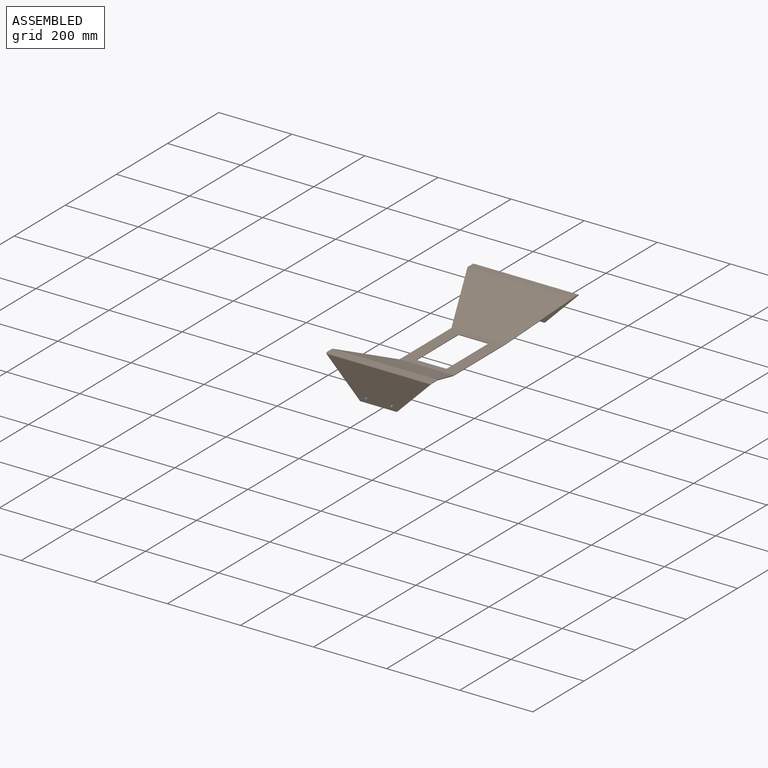
[diagram: assembled view]
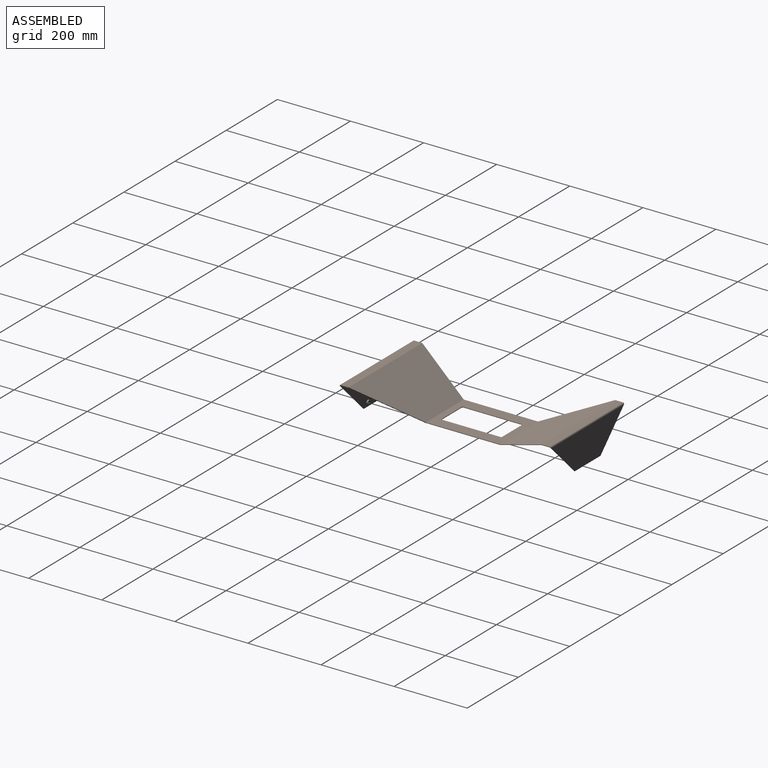
[diagram: assembled view, second angle]
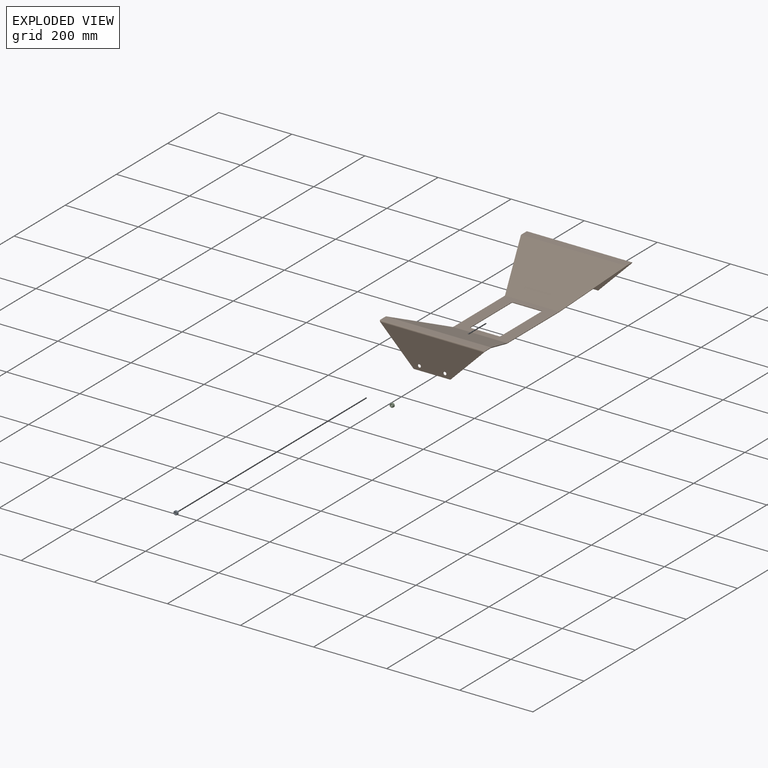
[diagram: exploded view]
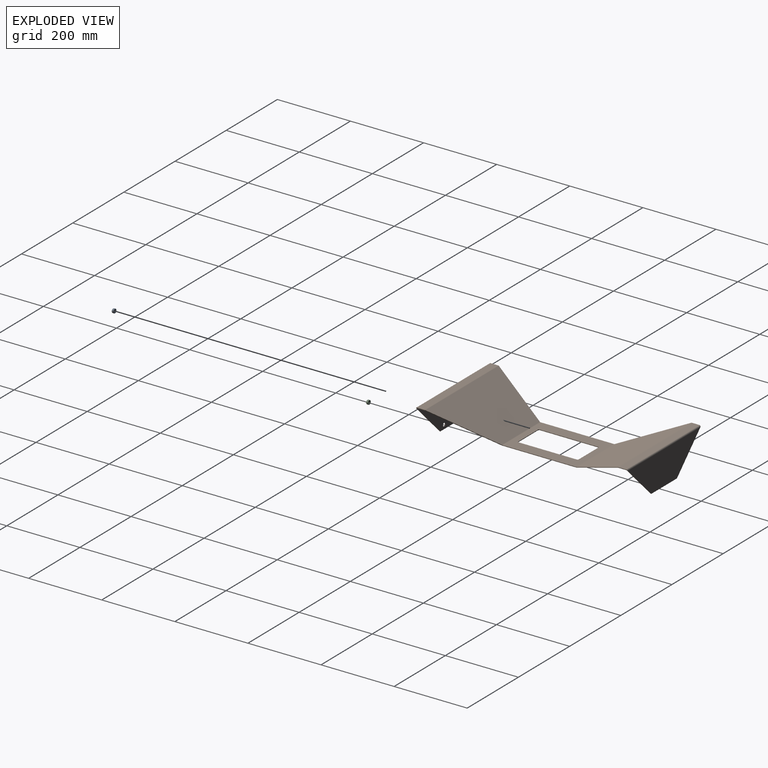
[diagram: exploded view, second angle]
ASSEMBLY  parts=3 mates=2
PART A: 158 faces, bbox 11.2x6.8x11.2 mm
  f0: cone r=3.23mm half-angle=45deg, axis (0,1,0), area 11.9mm2, adj f6,f7,f8,f9,f157
  f1: cone r=3.23mm half-angle=45deg, axis (0,-1,0), area 12mm2, adj f6,f7,f8,f9,f155
  f2: cone r=5.59mm half-angle=45deg, axis (0,-1,0), area 6.2mm2, adj f5,f154
  f3: cone r=5.46mm half-angle=45deg, axis (0,1,0), area 6.2mm2, adj f5,f155
  f4: cone r=4.32mm half-angle=20deg, axis (0,1,0), area 10.1mm2, adj f156,f157
  f5: cylinder r=5.59mm len=11.18mm, axis (0,-1,0), area 142.7mm2, adj f2,f3
  f6: cylinder r=3.17mm len=6.35mm, axis (0,-1,0), area 14.1mm2, adj f0,f1,f8,f9
  f7: cylinder r=2.35mm len=4.7mm, axis (0,-1,0), area 7.4mm2, adj f0,f1,f8,f9
  f8: bspline ~7.33x6.35mm, area 63.3mm2, adj f0,f1,f6,f7
  f9: bspline ~7.33x6.4mm, area 63.3mm2, adj f0,f1,f6,f7
  f10: cylinder r=4.69mm len=1.07mm, axis (0,-1,0), area 0.7mm2, adj f148,f152,f154,f156
  f11: cylinder r=4.69mm len=1.07mm, axis (0,-1,0), area 0.7mm2, adj f145,f149,f154,f156
  f12: cylinder r=4.69mm len=1.07mm, axis (0,-1,0), area 0.7mm2, adj f142,f146,f154,f156
  f13: cylinder r=4.69mm len=1.07mm, axis (0,-1,0), area 0.7mm2, adj f139,f143,f154,f156
  f14: cylinder r=4.69mm len=1.07mm, axis (0,-1,0), area 0.7mm2, adj f136,f140,f154,f156
  f15: cylinder r=4.69mm len=1.07mm, axis (0,-1,0), area 0.7mm2, adj f133,f137,f154,f156
  f16: cylinder r=4.69mm len=1.07mm, axis (0,-1,0), area 0.7mm2, adj f130,f134,f154,f156
  f17: cylinder r=4.69mm len=1.07mm, axis (0,-1,0), area 0.7mm2, adj f127,f131,f154,f156
  f18: cylinder r=4.69mm len=1.07mm, axis (0,-1,0), area 0.7mm2, adj f124,f128,f154,f156
  f19: cylinder r=4.69mm len=1.07mm, axis (0,-1,0), area 0.7mm2, adj f121,f125,f154,f156
  f20: cylinder r=4.69mm len=1.07mm, axis (0,-1,0), area 0.7mm2, adj f118,f122,f154,f156
  f21: cylinder r=4.69mm len=1.07mm, axis (0,-1,0), area 0.7mm2, adj f115,f119,f154,f156
  f22: cylinder r=4.69mm len=1.07mm, axis (0,-1,0), area 0.7mm2, adj f112,f116,f154,f156
  f23: cylinder r=4.69mm len=1.07mm, axis (0,-1,0), area 0.7mm2, adj f109,f113,f154,f156
  f24: cylinder r=4.69mm len=1.07mm, axis (0,-1,0), area 0.7mm2, adj f106,f110,f154,f156
  f25: cylinder r=4.69mm len=1.07mm, axis (0,-1,0), area 0.7mm2, adj f103,f107,f154,f156
  f26: cylinder r=4.69mm len=1.07mm, axis (0,-1,0), area 0.7mm2, adj f100,f104,f154,f156
  f27: cylinder r=4.69mm len=1.07mm, axis (0,-1,0), area 0.7mm2, adj f97,f101,f154,f156
  f28: cylinder r=4.69mm len=1.07mm, axis (0,-1,0), area 0.7mm2, adj f94,f98,f154,f156
  f29: cylinder r=4.69mm len=1.07mm, axis (0,-1,0), area 0.7mm2, adj f91,f95,f154,f156
  f30: cylinder r=4.69mm len=1.07mm, axis (0,-1,0), area 0.7mm2, adj f88,f92,f154,f156
  f31: cylinder r=4.69mm len=1.07mm, axis (0,-1,0), area 0.7mm2, adj f85,f89,f154,f156
  f32: cylinder r=4.69mm len=1.07mm, axis (0,-1,0), area 0.7mm2, adj f82,f86,f154,f156
  f33: cylinder r=4.69mm len=1.07mm, axis (0,-1,0), area 0.7mm2, adj f79,f83,f154,f156
  f34: cylinder r=4.69mm len=1.07mm, axis (0,-1,0), area 0.7mm2, adj f76,f80,f154,f156
  f35: cylinder r=4.69mm len=1.07mm, axis (0,-1,0), area 0.7mm2, adj f73,f77,f154,f156
  f36: cylinder r=4.69mm len=1.07mm, axis (0,-1,0), area 0.7mm2, adj f70,f74,f154,f156
  f37: cylinder r=4.69mm len=1.07mm, axis (0,-1,0), area 0.7mm2, adj f67,f71,f154,f156
  f38: cylinder r=4.69mm len=1.07mm, axis (0,-1,0), area 0.7mm2, adj f64,f68,f154,f156
  f39: cylinder r=4.69mm len=1.07mm, axis (0,-1,0), area 0.7mm2, adj f61,f65,f154,f156
  f40: cylinder r=4.69mm len=1.07mm, axis (0,-1,0), area 0.7mm2, adj f58,f62,f154,f156
  f41: cylinder r=4.69mm len=1.07mm, axis (0,-1,0), area 0.7mm2, adj f55,f59,f154,f156
  f42: cylinder r=4.69mm len=1.07mm, axis (0,-1,0), area 0.7mm2, adj f52,f56,f154,f156
  f43: cylinder r=4.69mm len=1.07mm, axis (0,-1,0), area 0.7mm2, adj f49,f53,f154,f156
  f44: cylinder r=4.69mm len=1.07mm, axis (0,-1,0), area 0.7mm2, adj f46,f50,f154,f156
  f45: cylinder r=4.69mm len=1.07mm, axis (0,-1,0), area 0.7mm2, adj f47,f151,f154,f156
  f46: plane 1.07x0.19mm, normal (1,0,0), area 0.2mm2, adj f44,f48,f154,f156
  f47: plane 1.07x0.19mm, normal (-1,0,0), area 0.2mm2, adj f45,f48,f154,f156
  f48: plane 1.07x0.13mm, normal (0,0,1), area 0.1mm2, adj f46,f47,f154,f156
  f49: plane 1.07x0.19mm, normal (0.98,0,0.17), area 0.2mm2, adj f43,f51,f154,f156
  f50: plane 1.07x0.19mm, normal (-0.98,0,-0.17), area 0.2mm2, adj f44,f51,f154,f156
  f51: plane 1.07x0.13mm, normal (-0.17,0,0.98), area 0.1mm2, adj f49,f50,f154,f156
  f52: plane 1.07x0.18mm, normal (0.94,0,0.34), area 0.2mm2, adj f42,f54,f154,f156
  f53: plane 1.07x0.18mm, normal (-0.94,0,-0.34), area 0.2mm2, adj f43,f54,f154,f156
  f54: plane 1.07x0.12mm, normal (-0.34,0,0.94), area 0.1mm2, adj f52,f53,f154,f156
  f55: plane 1.07x0.16mm, normal (0.87,0,0.5), area 0.2mm2, adj f41,f57,f154,f156
  f56: plane 1.07x0.16mm, normal (-0.87,0,-0.5), area 0.2mm2, adj f42,f57,f154,f156
  f57: plane 1.07x0.11mm, normal (-0.5,0,0.87), area 0.1mm2, adj f55,f56,f154,f156
  f58: plane 1.07x0.15mm, normal (0.77,0,0.64), area 0.2mm2, adj f40,f60,f154,f156
  f59: plane 1.07x0.15mm, normal (-0.77,0,-0.64), area 0.2mm2, adj f41,f60,f154,f156
  f60: plane 1.07x0.1mm, normal (-0.64,0,0.77), area 0.1mm2, adj f58,f59,f154,f156
  f61: plane 1.07x0.15mm, normal (0.64,0,0.77), area 0.2mm2, adj f39,f63,f154,f156
  f62: plane 1.07x0.15mm, normal (-0.64,0,-0.77), area 0.2mm2, adj f40,f63,f154,f156
  f63: plane 1.07x0.1mm, normal (-0.77,0,0.64), area 0.1mm2, adj f61,f62,f154,f156
  f64: plane 1.07x0.16mm, normal (0.5,0,0.87), area 0.2mm2, adj f38,f66,f154,f156
  f65: plane 1.07x0.16mm, normal (-0.5,0,-0.87), area 0.2mm2, adj f39,f66,f154,f156
  f66: plane 1.07x0.11mm, normal (-0.87,0,0.5), area 0.1mm2, adj f64,f65,f154,f156
  f67: plane 1.07x0.18mm, normal (0.34,0,0.94), area 0.2mm2, adj f37,f69,f154,f156
  f68: plane 1.07x0.18mm, normal (-0.34,0,-0.94), area 0.2mm2, adj f38,f69,f154,f156
  f69: plane 1.07x0.12mm, normal (-0.94,0,0.34), area 0.1mm2, adj f67,f68,f154,f156
  f70: plane 1.07x0.19mm, normal (0.17,0,0.98), area 0.2mm2, adj f36,f72,f154,f156
  f71: plane 1.07x0.19mm, normal (-0.17,0,-0.98), area 0.2mm2, adj f37,f72,f154,f156
  f72: plane 1.07x0.13mm, normal (-0.98,0,0.17), area 0.1mm2, adj f70,f71,f154,f156
  f73: plane 1.07x0.19mm, normal (0,0,1), area 0.2mm2, adj f35,f75,f154,f156
  f74: plane 1.07x0.19mm, normal (0,0,-1), area 0.2mm2, adj f36,f75,f154,f156
  f75: plane 1.07x0.13mm, normal (-1,0,0), area 0.1mm2, adj f73,f74,f154,f156
  f76: plane 1.07x0.19mm, normal (-0.17,0,0.98), area 0.2mm2, adj f34,f78,f154,f156
  f77: plane 1.07x0.19mm, normal (0.17,0,-0.98), area 0.2mm2, adj f35,f78,f154,f156
  f78: plane 1.07x0.13mm, normal (-0.98,0,-0.17), area 0.1mm2, adj f76,f77,f154,f156
  f79: plane 1.07x0.18mm, normal (-0.34,0,0.94), area 0.2mm2, adj f33,f81,f154,f156
  f80: plane 1.07x0.18mm, normal (0.34,0,-0.94), area 0.2mm2, adj f34,f81,f154,f156
  f81: plane 1.07x0.12mm, normal (-0.94,0,-0.34), area 0.1mm2, adj f79,f80,f154,f156
  f82: plane 1.07x0.16mm, normal (-0.5,0,0.87), area 0.2mm2, adj f32,f84,f154,f156
  f83: plane 1.07x0.16mm, normal (0.5,0,-0.87), area 0.2mm2, adj f33,f84,f154,f156
  f84: plane 1.07x0.11mm, normal (-0.87,0,-0.5), area 0.1mm2, adj f82,f83,f154,f156
  f85: plane 1.07x0.15mm, normal (-0.64,0,0.77), area 0.2mm2, adj f31,f87,f154,f156
  f86: plane 1.07x0.15mm, normal (0.64,0,-0.77), area 0.2mm2, adj f32,f87,f154,f156
  f87: plane 1.07x0.1mm, normal (-0.77,0,-0.64), area 0.1mm2, adj f85,f86,f154,f156
  f88: plane 1.07x0.15mm, normal (-0.77,0,0.64), area 0.2mm2, adj f30,f90,f154,f156
  f89: plane 1.07x0.15mm, normal (0.77,0,-0.64), area 0.2mm2, adj f31,f90,f154,f156
  f90: plane 1.07x0.1mm, normal (-0.64,0,-0.77), area 0.1mm2, adj f88,f89,f154,f156
  f91: plane 1.07x0.16mm, normal (-0.87,0,0.5), area 0.2mm2, adj f29,f93,f154,f156
  f92: plane 1.07x0.16mm, normal (0.87,0,-0.5), area 0.2mm2, adj f30,f93,f154,f156
  f93: plane 1.07x0.11mm, normal (-0.5,0,-0.87), area 0.1mm2, adj f91,f92,f154,f156
  f94: plane 1.07x0.18mm, normal (-0.94,0,0.34), area 0.2mm2, adj f28,f96,f154,f156
  f95: plane 1.07x0.18mm, normal (0.94,0,-0.34), area 0.2mm2, adj f29,f96,f154,f156
  f96: plane 1.07x0.12mm, normal (-0.34,0,-0.94), area 0.1mm2, adj f94,f95,f154,f156
  f97: plane 1.07x0.19mm, normal (-0.98,0,0.17), area 0.2mm2, adj f27,f99,f154,f156
  f98: plane 1.07x0.19mm, normal (0.98,0,-0.17), area 0.2mm2, adj f28,f99,f154,f156
  f99: plane 1.07x0.13mm, normal (-0.17,0,-0.98), area 0.1mm2, adj f97,f98,f154,f156
  f100: plane 1.07x0.19mm, normal (-1,0,0), area 0.2mm2, adj f26,f102,f154,f156
  f101: plane 1.07x0.19mm, normal (1,0,0), area 0.2mm2, adj f27,f102,f154,f156
  f102: plane 1.07x0.13mm, normal (0,0,-1), area 0.1mm2, adj f100,f101,f154,f156
  f103: plane 1.07x0.19mm, normal (-0.98,0,-0.17), area 0.2mm2, adj f25,f105,f154,f156
  f104: plane 1.07x0.19mm, normal (0.98,0,0.17), area 0.2mm2, adj f26,f105,f154,f156
  f105: plane 1.07x0.13mm, normal (0.17,0,-0.98), area 0.1mm2, adj f103,f104,f154,f156
  f106: plane 1.07x0.18mm, normal (-0.94,0,-0.34), area 0.2mm2, adj f24,f108,f154,f156
  f107: plane 1.07x0.18mm, normal (0.94,0,0.34), area 0.2mm2, adj f25,f108,f154,f156
  f108: plane 1.07x0.12mm, normal (0.34,0,-0.94), area 0.1mm2, adj f106,f107,f154,f156
  f109: plane 1.07x0.16mm, normal (-0.87,0,-0.5), area 0.2mm2, adj f23,f111,f154,f156
  f110: plane 1.07x0.16mm, normal (0.87,0,0.5), area 0.2mm2, adj f24,f111,f154,f156
  f111: plane 1.07x0.11mm, normal (0.5,0,-0.87), area 0.1mm2, adj f109,f110,f154,f156
  f112: plane 1.07x0.15mm, normal (-0.77,0,-0.64), area 0.2mm2, adj f22,f114,f154,f156
  f113: plane 1.07x0.15mm, normal (0.77,0,0.64), area 0.2mm2, adj f23,f114,f154,f156
  f114: plane 1.07x0.1mm, normal (0.64,0,-0.77), area 0.1mm2, adj f112,f113,f154,f156
  f115: plane 1.07x0.15mm, normal (-0.64,0,-0.77), area 0.2mm2, adj f21,f117,f154,f156
  f116: plane 1.07x0.15mm, normal (0.64,0,0.77), area 0.2mm2, adj f22,f117,f154,f156
  f117: plane 1.07x0.1mm, normal (0.77,0,-0.64), area 0.1mm2, adj f115,f116,f154,f156
  f118: plane 1.07x0.16mm, normal (-0.5,0,-0.87), area 0.2mm2, adj f20,f120,f154,f156
  f119: plane 1.07x0.16mm, normal (0.5,0,0.87), area 0.2mm2, adj f21,f120,f154,f156
  f120: plane 1.07x0.11mm, normal (0.87,0,-0.5), area 0.1mm2, adj f118,f119,f154,f156
  f121: plane 1.07x0.18mm, normal (-0.34,0,-0.94), area 0.2mm2, adj f19,f123,f154,f156
  f122: plane 1.07x0.18mm, normal (0.34,0,0.94), area 0.2mm2, adj f20,f123,f154,f156
  f123: plane 1.07x0.12mm, normal (0.94,0,-0.34), area 0.1mm2, adj f121,f122,f154,f156
  f124: plane 1.07x0.19mm, normal (-0.17,0,-0.98), area 0.2mm2, adj f18,f126,f154,f156
  f125: plane 1.07x0.19mm, normal (0.17,0,0.98), area 0.2mm2, adj f19,f126,f154,f156
  f126: plane 1.07x0.13mm, normal (0.98,0,-0.17), area 0.1mm2, adj f124,f125,f154,f156
  f127: plane 1.07x0.19mm, normal (0,0,-1), area 0.2mm2, adj f17,f129,f154,f156
  f128: plane 1.07x0.19mm, normal (0,0,1), area 0.2mm2, adj f18,f129,f154,f156
  f129: plane 1.07x0.13mm, normal (1,0,0), area 0.1mm2, adj f127,f128,f154,f156
  f130: plane 1.07x0.19mm, normal (0.17,0,-0.98), area 0.2mm2, adj f16,f132,f154,f156
  f131: plane 1.07x0.19mm, normal (-0.17,0,0.98), area 0.2mm2, adj f17,f132,f154,f156
  f132: plane 1.07x0.13mm, normal (0.98,0,0.17), area 0.1mm2, adj f130,f131,f154,f156
  f133: plane 1.07x0.18mm, normal (0.34,0,-0.94), area 0.2mm2, adj f15,f135,f154,f156
  f134: plane 1.07x0.18mm, normal (-0.34,0,0.94), area 0.2mm2, adj f16,f135,f154,f156
  f135: plane 1.07x0.12mm, normal (0.94,0,0.34), area 0.1mm2, adj f133,f134,f154,f156
  f136: plane 1.07x0.16mm, normal (0.5,0,-0.87), area 0.2mm2, adj f14,f138,f154,f156
  f137: plane 1.07x0.16mm, normal (-0.5,0,0.87), area 0.2mm2, adj f15,f138,f154,f156
  f138: plane 1.07x0.11mm, normal (0.87,0,0.5), area 0.1mm2, adj f136,f137,f154,f156
  f139: plane 1.07x0.15mm, normal (0.64,0,-0.77), area 0.2mm2, adj f13,f141,f154,f156
  f140: plane 1.07x0.15mm, normal (-0.64,0,0.77), area 0.2mm2, adj f14,f141,f154,f156
  f141: plane 1.07x0.1mm, normal (0.77,0,0.64), area 0.1mm2, adj f139,f140,f154,f156
  f142: plane 1.07x0.15mm, normal (0.77,0,-0.64), area 0.2mm2, adj f12,f144,f154,f156
  f143: plane 1.07x0.15mm, normal (-0.77,0,0.64), area 0.2mm2, adj f13,f144,f154,f156
  f144: plane 1.07x0.1mm, normal (0.64,0,0.77), area 0.1mm2, adj f142,f143,f154,f156
  f145: plane 1.07x0.16mm, normal (0.87,0,-0.5), area 0.2mm2, adj f11,f147,f154,f156
  f146: plane 1.07x0.16mm, normal (-0.87,0,0.5), area 0.2mm2, adj f12,f147,f154,f156
  f147: plane 1.07x0.11mm, normal (0.5,0,0.87), area 0.1mm2, adj f145,f146,f154,f156
  f148: plane 1.07x0.18mm, normal (0.94,0,-0.34), area 0.2mm2, adj f10,f150,f154,f156
  f149: plane 1.07x0.18mm, normal (-0.94,0,0.34), area 0.2mm2, adj f11,f150,f154,f156
  f150: plane 1.07x0.12mm, normal (0.34,0,0.94), area 0.1mm2, adj f148,f149,f154,f156
  f151: plane 1.07x0.19mm, normal (0.98,0,-0.17), area 0.2mm2, adj f45,f153,f154,f156
  f152: plane 1.07x0.19mm, normal (-0.98,0,0.17), area 0.2mm2, adj f10,f153,f154,f156
  f153: plane 1.07x0.13mm, normal (0.17,0,0.98), area 0.1mm2, adj f151,f152,f154,f156
  f154: plane 10.92x10.92mm, normal (0,1,0), area 25.6mm2, adj f2,f10,f11,f12,f13,f14,f15,f16
  f155: plane 10.92x10.92mm, normal (0,-1,0), area 61mm2, adj f1,f3
  f156: plane 9.37x9.37mm, normal (0,1,0), area 13mm2, adj f4,f10,f11,f12,f13,f14,f15,f16
  f157: plane 8.64x8.64mm, normal (0,1,0), area 25.9mm2, adj f0,f4
PART B: 64 faces, bbox 287.8x578.9x95.3 mm
  f0: plane 100.34x1.52mm, normal (0,0,-1), area 152.9mm2, adj f1,f2,f3,f4
  f1: plane 91.75x91.75mm, normal (-0.71,0,-0.71), area 197.7mm2, adj f0,f3,f4,f61
  f2: plane 91.75x91.75mm, normal (0.71,0,-0.71), area 197.7mm2, adj f0,f3,f4,f60
  f3: plane 283.83x91.75mm, normal (0,1,0), area 17622.6mm2, adj f0,f1,f2,f62
  f4: plane 283.83x91.75mm, normal (0,-1,0), area 17622.6mm2, adj f0,f1,f2,f63
  f5: plane 21.17x1.52mm, normal (-1,0,0), area 32.3mm2, adj f7,f8,f57,f61
  f6: plane 21.17x1.52mm, normal (1,0,0), area 32.3mm2, adj f7,f8,f56,f60
  f7: plane 287.79x21.17mm, normal (0,0,1), area 6093.4mm2, adj f5,f6,f58,f62
  f8: plane 287.79x21.17mm, normal (0,0,-1), area 6093.4mm2, adj f5,f6,f59,f63
  f9: plane 162x70.8mm, normal (-0.93,-0.34,-0.15), area 287.9mm2, adj f11,f12,f53,f57
  f10: plane 162x70.8mm, normal (0.93,-0.34,-0.15), area 287.9mm2, adj f11,f12,f52,f56
  f11: plane 287.47x161.4mm, normal (0,-0.4,0.92), area 38310.5mm2, adj f9,f10,f55,f58
  f12: plane 287.47x161.4mm, normal (0,0.4,-0.92), area 38310.5mm2, adj f9,f10,f54,f59
  f13: plane 202.38x1.52mm, normal (-1,0,0), area 308.4mm2, adj f23,f24,f49,f53
  f14: cylinder r=2.54mm len=2.54mm, axis (0,0,1), area 6.1mm2, adj f15,f21,f23,f24
  f15: plane 160.02x1.52mm, normal (1,0,0), area 243.9mm2, adj f14,f16,f23,f24
  f16: cylinder r=2.54mm len=2.54mm, axis (0,0,1), area 6.1mm2, adj f15,f17,f23,f24
  f17: plane 77.47x1.52mm, normal (0,-1,0), area 118.1mm2, adj f16,f18,f23,f24
  f18: cylinder r=2.54mm len=2.54mm, axis (0,0,1), area 6.1mm2, adj f17,f19,f23,f24
  f19: plane 160.02x1.52mm, normal (-1,0,0), area 243.9mm2, adj f18,f20,f23,f24
  f20: cylinder r=2.54mm len=2.54mm, axis (0,0,1), area 6.1mm2, adj f19,f21,f23,f24
  f21: plane 77.47x1.52mm, normal (0,1,0), area 118.1mm2, adj f14,f20,f23,f24
  f22: plane 202.38x1.52mm, normal (1,0,0), area 308.4mm2, adj f23,f24,f48,f52
  f23: plane 202.38x148.09mm, normal (0,0,1), area 16347.5mm2, adj f13,f14,f15,f16,f17,f18,f19,f20
  f24: plane 202.38x148.09mm, normal (0,0,-1), area 16347.5mm2, adj f13,f14,f15,f16,f17,f18,f19,f20
  f25: plane 162x70.8mm, normal (-0.93,0.34,-0.15), area 287.9mm2, adj f27,f28,f45,f49
  f26: plane 162x70.8mm, normal (0.93,0.34,-0.15), area 287.9mm2, adj f27,f28,f44,f48
  f27: plane 287.47x161.4mm, normal (0,0.4,0.92), area 38310.5mm2, adj f25,f26,f46,f51
  f28: plane 287.47x161.4mm, normal (0,-0.4,-0.92), area 38310.5mm2, adj f25,f26,f47,f50
  f29: plane 21.17x1.52mm, normal (-1,0,0), area 32.3mm2, adj f31,f32,f41,f45
  f30: plane 21.17x1.52mm, normal (1,0,0), area 32.3mm2, adj f31,f32,f40,f44
  f31: plane 287.79x21.17mm, normal (0,0,1), area 6093.4mm2, adj f29,f30,f42,f46
  f32: plane 287.79x21.17mm, normal (0,0,-1), area 6093.4mm2, adj f29,f30,f43,f47
  f33: plane 91.75x91.75mm, normal (-0.71,0,-0.71), area 197.7mm2, adj f34,f38,f39,f41
  f34: plane 100.34x1.52mm, normal (0,0,-1), area 152.9mm2, adj f33,f37,f38,f39
  f35: cylinder r=4.37mm len=8.73mm, axis (0,-1,0), area 41.8mm2, adj f38,f39
  f36: cylinder r=4.37mm len=8.73mm, axis (0,-1,0), area 41.8mm2, adj f38,f39
  f37: plane 91.75x91.75mm, normal (0.71,0,-0.71), area 197.7mm2, adj f34,f38,f39,f40
  f38: plane 283.83x91.75mm, normal (0,-1,0), area 17502.8mm2, adj f33,f34,f35,f36,f37,f42
  f39: plane 283.83x91.75mm, normal (0,1,0), area 17502.8mm2, adj f33,f34,f35,f36,f37,f43
  f40: bspline ~3.51x3.51mm, area 7.4mm2, adj f30,f37,f42,f43
  f41: bspline ~3.51x3.51mm, area 7.4mm2, adj f29,f33,f42,f43
  f42: cylinder r=3.51mm len=287.79mm, axis (1,0,0), area 1576.6mm2, adj f31,f38,f40,f41
  f43: cylinder r=1.98mm len=287.79mm, axis (1,0,0), area 891.2mm2, adj f32,f39,f40,f41
  f44: bspline ~1.69x1.38mm, area 1.7mm2, adj f26,f30,f46,f47
  f45: bspline ~1.69x1.38mm, area 1.7mm2, adj f25,f29,f46,f47
  f46: cylinder r=3.51mm len=287.79mm, axis (1,0,0), area 409.4mm2, adj f27,f31,f44,f45
  f47: cylinder r=1.98mm len=287.79mm, axis (1,0,0), area 231.4mm2, adj f28,f32,f44,f45
  f48: bspline ~1.69x1.38mm, area 1.8mm2, adj f22,f26,f50,f51
  f49: bspline ~1.69x1.38mm, area 1.8mm2, adj f13,f25,f50,f51
  f50: cylinder r=3.51mm len=148.66mm, axis (1,0,0), area 211.2mm2, adj f24,f28,f48,f49
  f51: cylinder r=1.98mm len=148.66mm, axis (1,0,0), area 119.4mm2, adj f23,f27,f48,f49
  f52: bspline ~1.69x1.38mm, area 1.8mm2, adj f10,f22,f54,f55
  f53: bspline ~1.69x1.38mm, area 1.8mm2, adj f9,f13,f54,f55
  f54: cylinder r=3.51mm len=148.66mm, axis (1,0,0), area 211.2mm2, adj f12,f24,f52,f53
  f55: cylinder r=1.98mm len=148.66mm, axis (1,0,0), area 119.4mm2, adj f11,f23,f52,f53
  f56: bspline ~1.69x1.38mm, area 1.7mm2, adj f6,f10,f58,f59
  f57: bspline ~1.69x1.38mm, area 1.7mm2, adj f5,f9,f58,f59
  f58: cylinder r=3.51mm len=287.79mm, axis (1,0,0), area 409.4mm2, adj f7,f11,f56,f57
  f59: cylinder r=1.98mm len=287.79mm, axis (1,0,0), area 231.4mm2, adj f8,f12,f56,f57
  f60: bspline ~3.51x3.51mm, area 7.4mm2, adj f2,f6,f62,f63
  f61: bspline ~3.51x3.51mm, area 7.4mm2, adj f1,f5,f62,f63
  f62: cylinder r=3.51mm len=287.79mm, axis (1,0,0), area 1576.6mm2, adj f3,f7,f60,f61
  f63: cylinder r=1.98mm len=287.79mm, axis (1,0,0), area 891.1mm2, adj f4,f8,f60,f61
PART C: same geometry as A
PLACE A rot(axis=(0,0,1),180deg) t=(-34.93,-283.59,12.7)mm
PLACE B at identity fixed
PLACE C rot(axis=(0,0,1),180deg) t=(34.93,-283.59,12.7)mm
MATE fastened B.f35 <-> C.f0  axis (0,1,0) through (34.93,-287.91,12.7)mm
MATE fastened B.f36 <-> A.f0  axis (0,1,0) through (-34.93,-287.91,12.7)mm
